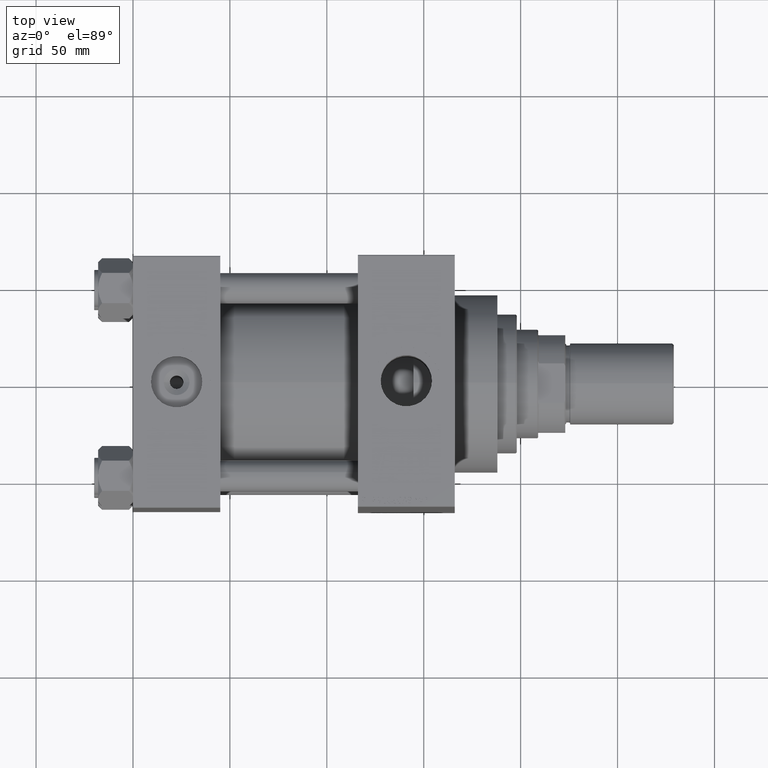
[diagram: clean part render]
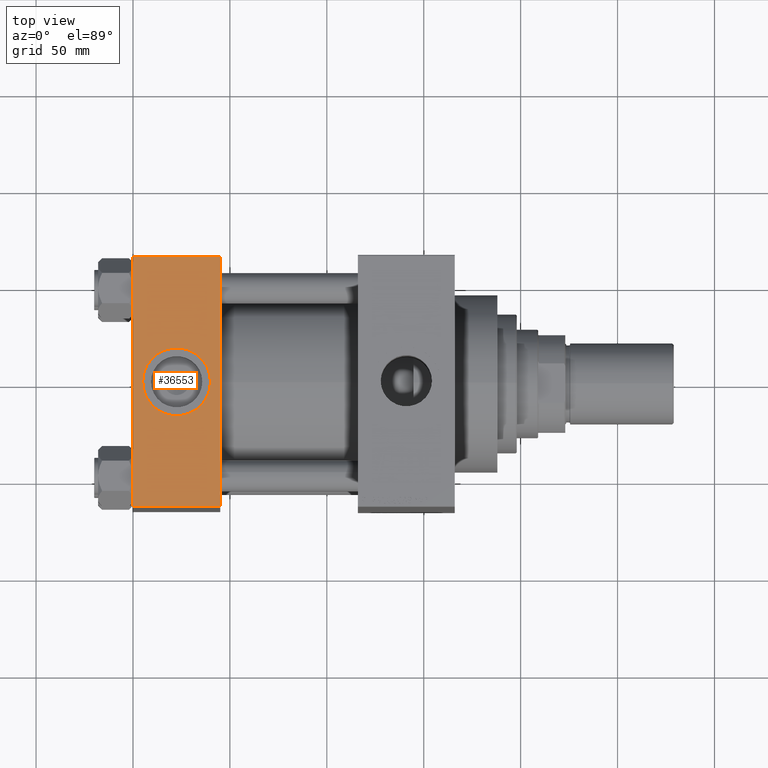
[diagram: same view with one face highlighted and labeled with its STEP entity id]
A machine part, top view. The second image highlights one B-rep face of the part: STEP entity #36553.
In plain terms, the highlighted planar face has unit normal (0, 0, -1).
Its self-contained STEP definition (entity closure, byte-faithful):
#1858 = CARTESIAN_POINT ( 'NONE',  ( 0.000000000000000000, 64.49999999999997158, 65.00000000000001421 ) ) ;
#2156 = DIRECTION ( 'NONE',  ( 0.000000000000000000, 1.000000000000000000, 1.067522139062650548E-16 ) ) ;
#2409 = FACE_BOUND ( 'NONE', #10655, .T. ) ;
#3622 = EDGE_LOOP ( 'NONE', ( #35318, #10303, #13922, #40835 ) ) ;
#5402 = LINE ( 'NONE', #24520, #12648 ) ;
#7431 = DIRECTION ( 'NONE',  ( 1.000000000000000000, 0.000000000000000000, 0.000000000000000000 ) ) ;
#7754 = EDGE_CURVE ( 'NONE', #46646, #38406, #22431, .T. ) ;
#10303 = ORIENTED_EDGE ( 'NONE', *, *, #28936, .T. ) ;
#10423 = DIRECTION ( 'NONE',  ( 0.000000000000000000, 0.000000000000000000, 1.000000000000000000 ) ) ;
#10655 = EDGE_LOOP ( 'NONE', ( #38446, #19124 ) ) ;
#10966 = CARTESIAN_POINT ( 'NONE',  ( 0.000000000000000000, 65.00000000000000000, 65.00000000000001421 ) ) ;
#11137 = CARTESIAN_POINT ( 'NONE',  ( 0.000000000000000000, -64.49999999999997158, 65.00000000000000000 ) ) ;
#11619 = VECTOR ( 'NONE', #21999, 1000.000000000000000 ) ;
#12648 = VECTOR ( 'NONE', #27472, 1000.000000000000000 ) ;
#13101 = VECTOR ( 'NONE', #40743, 1000.000000000000000 ) ;
#13922 = ORIENTED_EDGE ( 'NONE', *, *, #14330, .F. ) ;
#14330 = EDGE_CURVE ( 'NONE', #36539, #30117, #21673, .T. ) ;
#15259 = EDGE_CURVE ( 'NONE', #40366, #32322, #28613, .T. ) ;
#17515 = CARTESIAN_POINT ( 'NONE',  ( 22.50000000000000000, -8.673617379884035472E-15, 65.00000000000000000 ) ) ;
#18345 = CARTESIAN_POINT ( 'NONE',  ( 45.00000000000000000, -64.49999999999997158, 65.00000000000000000 ) ) ;
#19124 = ORIENTED_EDGE ( 'NONE', *, *, #7754, .F. ) ;
#20788 = AXIS2_PLACEMENT_3D ( 'NONE', #29112, #32027, #2156 ) ;
#21428 = CARTESIAN_POINT ( 'NONE',  ( 45.00000000000000000, 65.00000000000000000, 65.00000000000001421 ) ) ;
#21673 = LINE ( 'NONE', #21428, #13101 ) ;
#21999 = DIRECTION ( 'NONE',  ( 0.000000000000000000, -1.000000000000000000, -1.067522139062650425E-16 ) ) ;
#22431 = CIRCLE ( 'NONE', #44299, 17.50000000000000000 ) ;
#24460 = PLANE ( 'NONE',  #20788 ) ;
#24520 = CARTESIAN_POINT ( 'NONE',  ( 0.000000000000000000, 64.49999999999997158, 65.00000000000001421 ) ) ;
#24907 = EDGE_CURVE ( 'NONE', #38406, #46646, #31450, .T. ) ;
#26104 = CARTESIAN_POINT ( 'NONE',  ( 22.50000000000000000, -8.673617379884035472E-15, 65.00000000000000000 ) ) ;
#26576 = DIRECTION ( 'NONE',  ( 0.000000000000000000, 0.000000000000000000, 1.000000000000000000 ) ) ;
#26783 = EDGE_CURVE ( 'NONE', #36539, #40366, #5402, .T. ) ;
#27138 = CARTESIAN_POINT ( 'NONE',  ( 40.00000000000000000, -8.673617379884035472E-15, 65.00000000000000000 ) ) ;
#27472 = DIRECTION ( 'NONE',  ( -1.000000000000000000, 0.000000000000000000, 0.000000000000000000 ) ) ;
#28613 = LINE ( 'NONE', #10966, #11619 ) ;
#28936 = EDGE_CURVE ( 'NONE', #32322, #30117, #37772, .T. ) ;
#29112 = CARTESIAN_POINT ( 'NONE',  ( 45.00000000000000000, 65.00000000000000000, 65.00000000000001421 ) ) ;
#30117 = VERTEX_POINT ( 'NONE', #18345 ) ;
#31450 = CIRCLE ( 'NONE', #41623, 17.50000000000000000 ) ;
#32027 = DIRECTION ( 'NONE',  ( 0.000000000000000000, 1.067522139062650548E-16, -1.000000000000000000 ) ) ;
#32322 = VERTEX_POINT ( 'NONE', #11137 ) ;
#34105 = CARTESIAN_POINT ( 'NONE',  ( 45.00000000000000000, -64.49999999999997158, 65.00000000000000000 ) ) ;
#34593 = VECTOR ( 'NONE', #7431, 1000.000000000000000 ) ;
#35318 = ORIENTED_EDGE ( 'NONE', *, *, #15259, .T. ) ;
#36539 = VERTEX_POINT ( 'NONE', #39605 ) ;
#36553 = ADVANCED_FACE ( 'NONE', ( #2409, #40113 ), #24460, .F. ) ;
#37772 = LINE ( 'NONE', #34105, #34593 ) ;
#37813 = DIRECTION ( 'NONE',  ( 1.000000000000000000, 0.000000000000000000, 0.000000000000000000 ) ) ;
#38406 = VERTEX_POINT ( 'NONE', #27138 ) ;
#38446 = ORIENTED_EDGE ( 'NONE', *, *, #24907, .F. ) ;
#39605 = CARTESIAN_POINT ( 'NONE',  ( 45.00000000000000000, 64.49999999999997158, 65.00000000000001421 ) ) ;
#40039 = DIRECTION ( 'NONE',  ( 1.000000000000000000, 0.000000000000000000, 0.000000000000000000 ) ) ;
#40113 = FACE_OUTER_BOUND ( 'NONE', #3622, .T. ) ;
#40366 = VERTEX_POINT ( 'NONE', #1858 ) ;
#40743 = DIRECTION ( 'NONE',  ( 0.000000000000000000, -1.000000000000000000, -1.067522139062650425E-16 ) ) ;
#40835 = ORIENTED_EDGE ( 'NONE', *, *, #26783, .T. ) ;
#41580 = CARTESIAN_POINT ( 'NONE',  ( 4.999999999999997335, -6.530485481376167224E-15, 65.00000000000000000 ) ) ;
#41623 = AXIS2_PLACEMENT_3D ( 'NONE', #26104, #26576, #37813 ) ;
#44299 = AXIS2_PLACEMENT_3D ( 'NONE', #17515, #10423, #40039 ) ;
#46646 = VERTEX_POINT ( 'NONE', #41580 ) ;